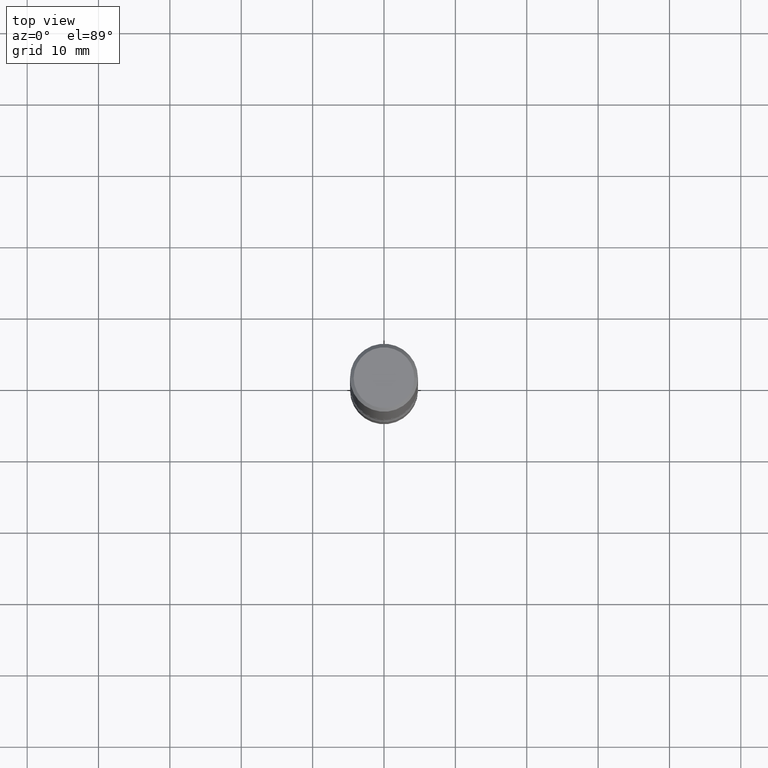
[diagram: clean part render]
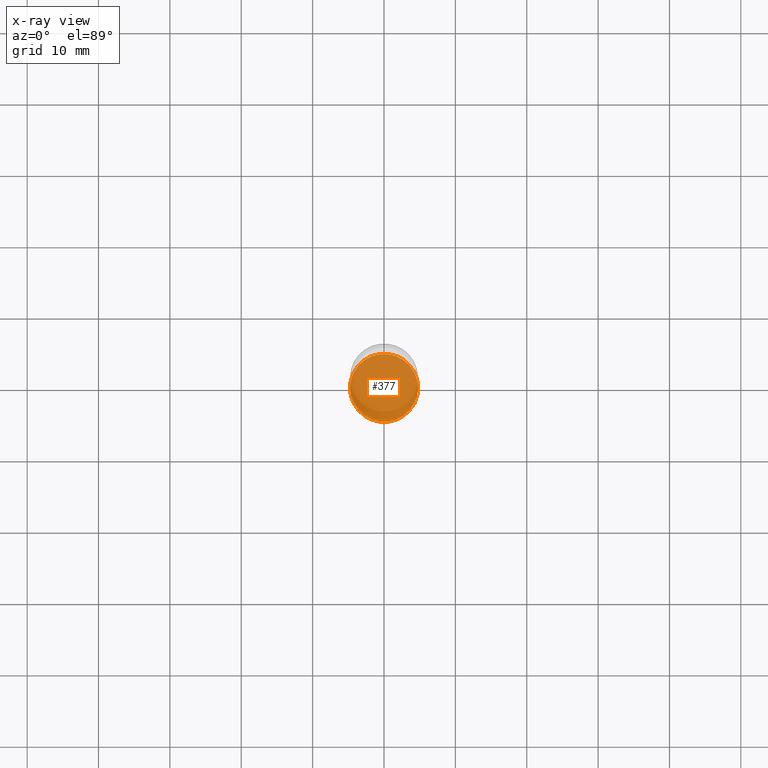
[diagram: x-ray — body ghosted, one internal face saturated and labeled with its STEP entity id]
A machine part, top view, then the same camera in x-ray: the body is ghosted and one INTERNAL B-rep face — a face not visible from any outside direction — is saturated and labeled: STEP entity #377.
In plain terms, the highlighted planar face has unit normal (0, -0, -1).
Its self-contained STEP definition (entity closure, byte-faithful):
#5 = CIRCLE ( 'NONE', #145, 0.1875000000000000833 ) ;
#26 = CARTESIAN_POINT ( 'NONE',  ( 7.947773620101696182E-29, -1.134731435124022600E-14, -3.250000000000000444 ) ) ;
#52 = CARTESIAN_POINT ( 'NONE',  ( 7.947773620101696182E-29, -1.134731435124022600E-14, -3.250000000000000444 ) ) ;
#69 = CARTESIAN_POINT ( 'NONE',  ( 7.947773620101696182E-29, -1.134731435124022600E-14, -3.250000000000000444 ) ) ;
#71 = PLANE ( 'NONE',  #311 ) ;
#106 = EDGE_CURVE ( 'NONE', #341, #555, #5, .T. ) ;
#120 = CARTESIAN_POINT ( 'NONE',  ( 0.1875000000000000833, -1.265661985330640259E-14, -3.250000000000000444 ) ) ;
#141 = EDGE_CURVE ( 'NONE', #555, #341, #224, .T. ) ;
#145 = AXIS2_PLACEMENT_3D ( 'NONE', #52, #227, #447 ) ;
#174 = ORIENTED_EDGE ( 'NONE', *, *, #141, .T. ) ;
#224 = CIRCLE ( 'NONE', #528, 0.1875000000000000833 ) ;
#227 = DIRECTION ( 'NONE',  ( -2.445468806185136597E-29, 3.491481338843145583E-15, 1.000000000000000000 ) ) ;
#288 = ORIENTED_EDGE ( 'NONE', *, *, #106, .T. ) ;
#311 = AXIS2_PLACEMENT_3D ( 'NONE', #26, #333, #510 ) ;
#333 = DIRECTION ( 'NONE',  ( 2.438088387897960049E-29, -3.491481338843145188E-15, -1.000000000000000000 ) ) ;
#341 = VERTEX_POINT ( 'NONE', #120 ) ;
#377 = ADVANCED_FACE ( 'NONE', ( #550 ), #71, .F. ) ;
#379 = EDGE_LOOP ( 'NONE', ( #288, #174 ) ) ;
#444 = DIRECTION ( 'NONE',  ( 1.000000000000000000, -6.982962677686269866E-15, 0.000000000000000000 ) ) ;
#447 = DIRECTION ( 'NONE',  ( 1.000000000000000000, -6.982962677686269866E-15, 0.000000000000000000 ) ) ;
#502 = DIRECTION ( 'NONE',  ( -2.445468806185136597E-29, 3.491481338843145583E-15, 1.000000000000000000 ) ) ;
#510 = DIRECTION ( 'NONE',  ( -1.000000000000000000, 6.982962677686265922E-15, -4.876176775795935793E-29 ) ) ;
#512 = CARTESIAN_POINT ( 'NONE',  ( -0.1875000000000000833, -1.127198000367356963E-14, -3.250000000000000444 ) ) ;
#528 = AXIS2_PLACEMENT_3D ( 'NONE', #69, #502, #444 ) ;
#550 = FACE_OUTER_BOUND ( 'NONE', #379, .T. ) ;
#555 = VERTEX_POINT ( 'NONE', #512 ) ;